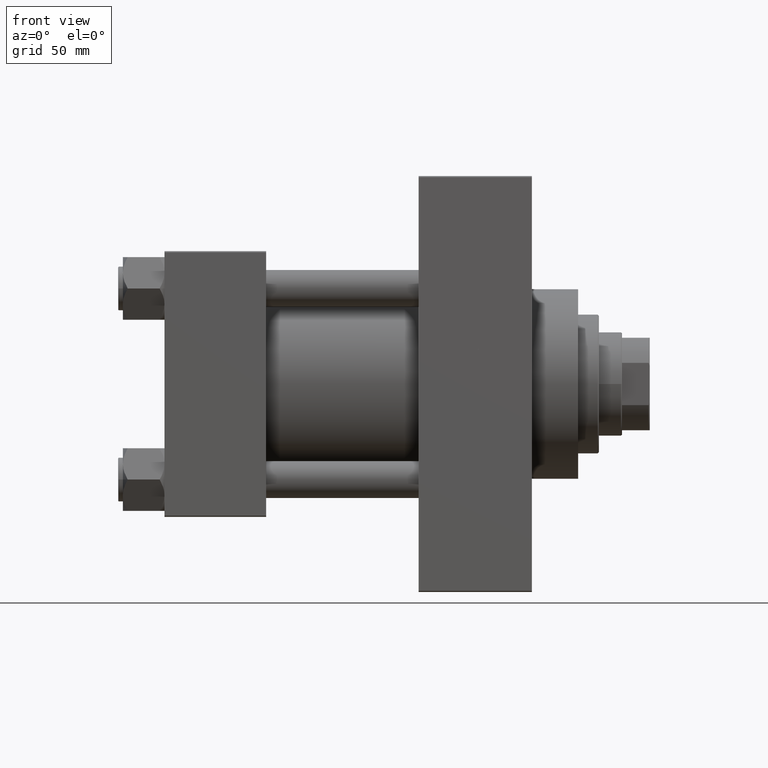
[diagram: clean part render]
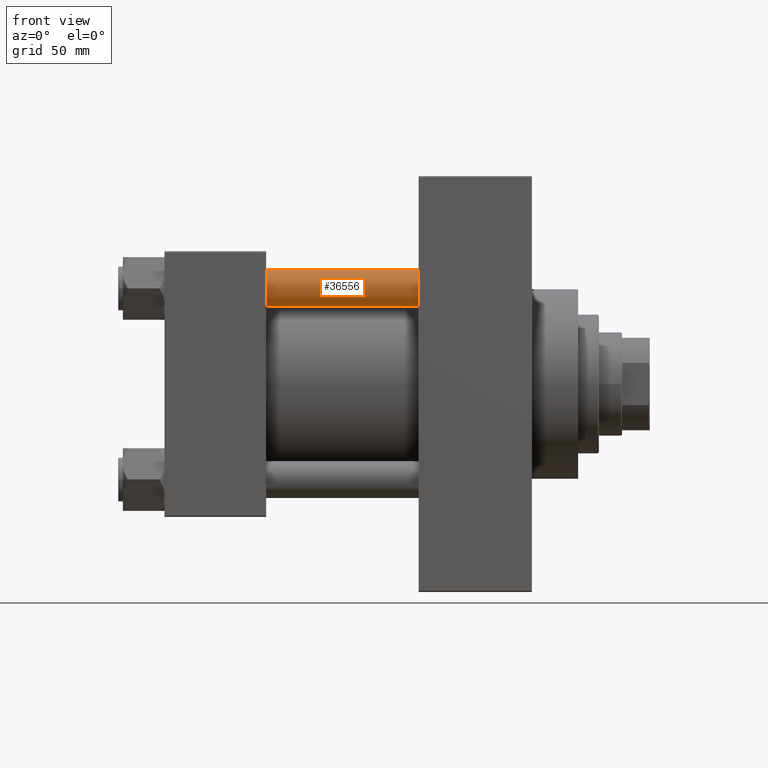
[diagram: same view with one face highlighted and labeled with its STEP entity id]
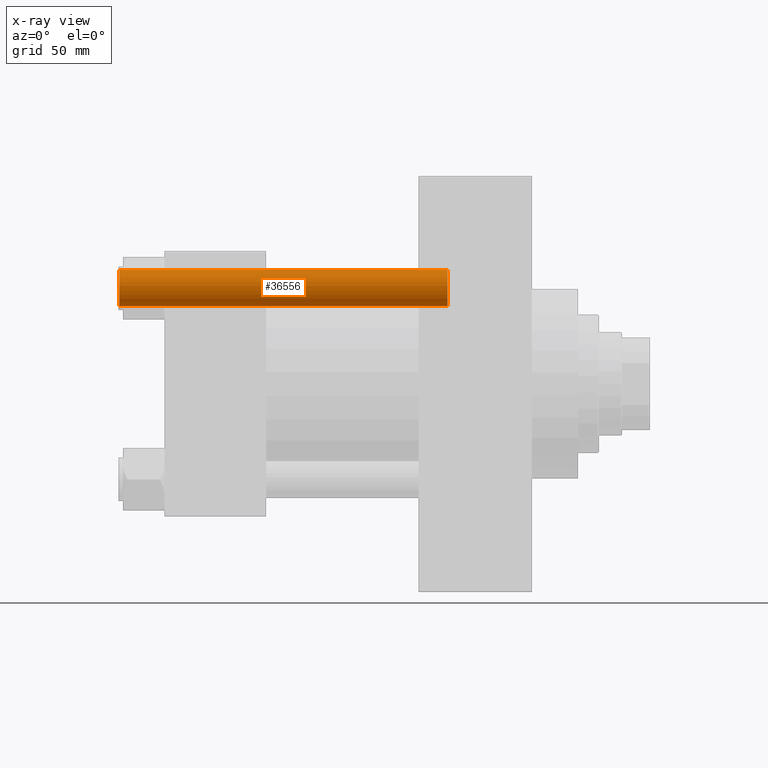
[diagram: x-ray of the same camera — body ghosted, the highlighted face saturated]
A machine part, front view. The second image highlights one B-rep face of the part: STEP entity #36556.
The next image is the same camera in x-ray: the body ghosted, the highlighted face saturated — about 0% of this face is hidden behind the body in this view.
In plain terms, the highlighted cylindrical surface (edge-blend (fillet) strip) has radius 8 mm, axis along (1, 0, 0).
Its self-contained STEP definition (entity closure, byte-faithful):
#5377 = EDGE_CURVE ( 'NONE', #11783, #46529, #39645, .T. ) ;
#8344 = CARTESIAN_POINT ( 'NONE',  ( 0.000000000000000000, 0.000000000000000000, 142.4999999999999716 ) ) ;
#9012 = EDGE_CURVE ( 'NONE', #18588, #17738, #40626, .T. ) ;
#10032 = CARTESIAN_POINT ( 'NONE',  ( -8.000000000000000000, 0.000000000000000000, 143.0000000000000000 ) ) ;
#11783 = VERTEX_POINT ( 'NONE', #32484 ) ;
#14466 = CARTESIAN_POINT ( 'NONE',  ( 0.000000000000000000, 0.000000000000000000, 143.0000000000000000 ) ) ;
#14549 = EDGE_LOOP ( 'NONE', ( #20463, #25057, #31525, #31288 ) ) ;
#17738 = VERTEX_POINT ( 'NONE', #48303 ) ;
#18003 = DIRECTION ( 'NONE',  ( -1.000000000000000000, 0.000000000000000000, 0.000000000000000000 ) ) ;
#18588 = VERTEX_POINT ( 'NONE', #29204 ) ;
#19194 = DIRECTION ( 'NONE',  ( 1.000000000000000000, 0.000000000000000000, 0.000000000000000000 ) ) ;
#20463 = ORIENTED_EDGE ( 'NONE', *, *, #9012, .T. ) ;
#20693 = CARTESIAN_POINT ( 'NONE',  ( -8.000000000000000000, 0.000000000000000000, 0.4999999999999726885 ) ) ;
#21778 = CYLINDRICAL_SURFACE ( 'NONE', #42816, 8.000000000000000000 ) ;
#22277 = DIRECTION ( 'NONE',  ( -0.000000000000000000, -0.000000000000000000, -1.000000000000000000 ) ) ;
#25057 = ORIENTED_EDGE ( 'NONE', *, *, #41503, .T. ) ;
#25415 = DIRECTION ( 'NONE',  ( -0.000000000000000000, -0.000000000000000000, -1.000000000000000000 ) ) ;
#27052 = CARTESIAN_POINT ( 'NONE',  ( 8.000000000000000000, 9.797174393178825657E-16, 143.0000000000000000 ) ) ;
#29061 = VECTOR ( 'NONE', #25415, 1000.000000000000000 ) ;
#29204 = CARTESIAN_POINT ( 'NONE',  ( -8.000000000000000000, 0.000000000000000000, 142.4999999999999716 ) ) ;
#30827 = DIRECTION ( 'NONE',  ( -0.000000000000000000, -0.000000000000000000, -1.000000000000000000 ) ) ;
#31288 = ORIENTED_EDGE ( 'NONE', *, *, #34220, .F. ) ;
#31525 = ORIENTED_EDGE ( 'NONE', *, *, #5377, .T. ) ;
#32484 = CARTESIAN_POINT ( 'NONE',  ( 8.000000000000000000, 9.797174393178825657E-16, 0.4999999999999726885 ) ) ;
#32545 = VECTOR ( 'NONE', #30827, 1000.000000000000000 ) ;
#34220 = EDGE_CURVE ( 'NONE', #18588, #46529, #43789, .T. ) ;
#35108 = LINE ( 'NONE', #27052, #32545 ) ;
#35307 = DIRECTION ( 'NONE',  ( 0.000000000000000000, 0.000000000000000000, -1.000000000000000000 ) ) ;
#36556 = ADVANCED_FACE ( 'NONE', ( #40917 ), #21778, .T. ) ;
#39645 = CIRCLE ( 'NONE', #44468, 8.000000000000000000 ) ;
#39798 = AXIS2_PLACEMENT_3D ( 'NONE', #8344, #35307, #19194 ) ;
#40240 = DIRECTION ( 'NONE',  ( 1.000000000000000000, 0.000000000000000000, 0.000000000000000000 ) ) ;
#40498 = DIRECTION ( 'NONE',  ( -0.000000000000000000, -0.000000000000000000, 1.000000000000000000 ) ) ;
#40626 = CIRCLE ( 'NONE', #39798, 8.000000000000000000 ) ;
#40917 = FACE_OUTER_BOUND ( 'NONE', #14549, .T. ) ;
#41503 = EDGE_CURVE ( 'NONE', #17738, #11783, #35108, .T. ) ;
#42816 = AXIS2_PLACEMENT_3D ( 'NONE', #14466, #22277, #18003 ) ;
#43789 = LINE ( 'NONE', #10032, #29061 ) ;
#44468 = AXIS2_PLACEMENT_3D ( 'NONE', #48025, #40498, #40240 ) ;
#46529 = VERTEX_POINT ( 'NONE', #20693 ) ;
#48025 = CARTESIAN_POINT ( 'NONE',  ( 0.000000000000000000, 0.000000000000000000, 0.4999999999999726885 ) ) ;
#48303 = CARTESIAN_POINT ( 'NONE',  ( 8.000000000000000000, 9.797174393178825657E-16, 142.4999999999999716 ) ) ;